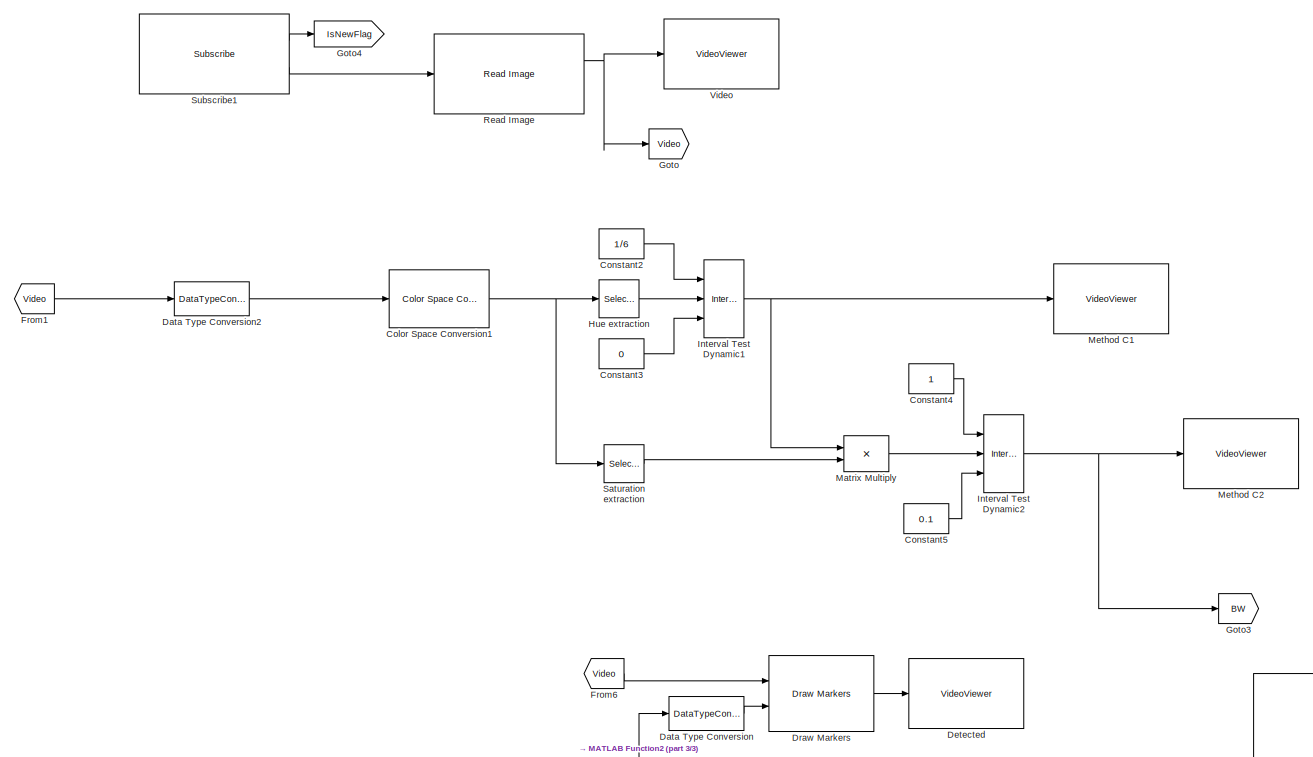
[diagram: root canvas - part 1/3, top left region]
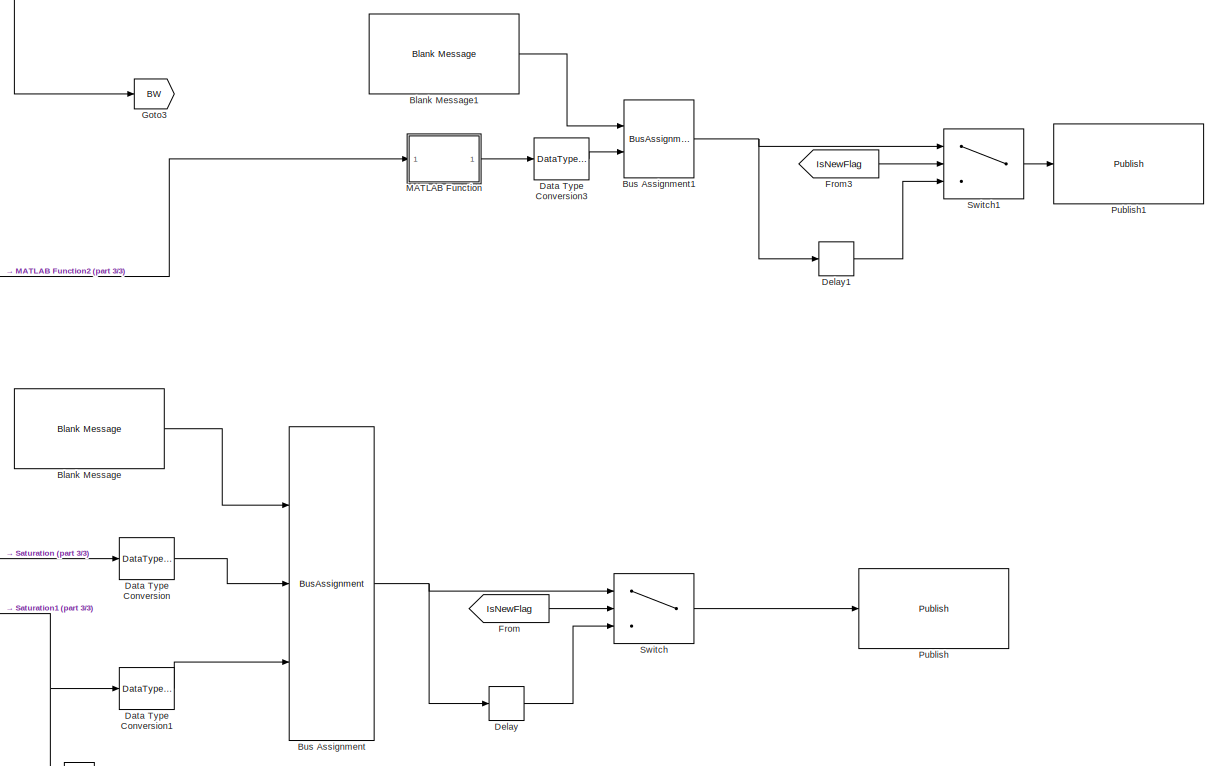
[diagram: root canvas - part 2/3, bottom right region]
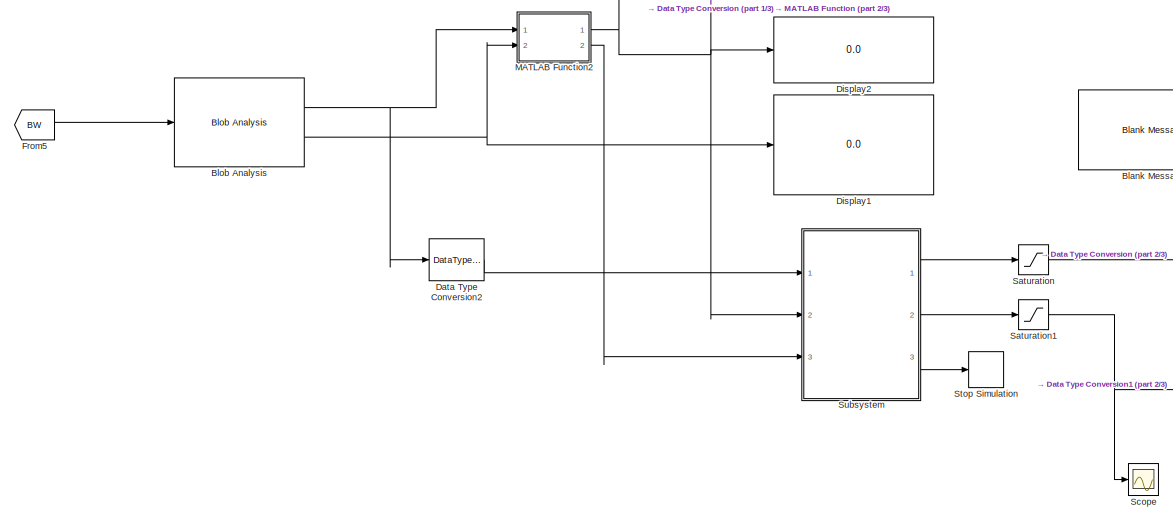
[diagram: root canvas - part 3/3, bottom left region]
MODEL slx_dbeae6b0be9f
KIND model
CONFIG AbsTol = auto
CONFIG EnableMultiTasking = off
CONFIG FixedStep = 0.1
CONFIG MaxStep = auto
CONFIG MinStep = auto
CONFIG RelTol = 1e-3
CONFIG SampleTimeConstraint = Unconstrained
CONFIG SolverName = FixedStepAuto
CONFIG StartTime = 0.0
CONFIG StopTime = inf
WORKSPACE source: mxarray member
WORKSPACE SL_ROS_VariableLengthArrays_MaxSizes: object (value not decoded)
BLOCK [Reference] Blank Message  REF=robotlib/Blank Message
  Ports = [0, 1]
  SourceBlock = robotlib/Blank Message
  SourceType = ROS Blank Message
BLOCK [Reference] Blank Message1  REF=robotlib/Blank Message
  Ports = [0, 1]
  SourceBlock = robotlib/Blank Message
  SourceType = ROS Blank Message
BLOCK [Reference] Blob Analysis  REF=visionstatistics/Blob Analysis
  Ports = [1, 2]
  SourceBlock = visionstatistics/Blob Analysis
  SourceType = Blob Analysis
  Tag = vipblks_row_conv
BLOCK [BusAssignment] Bus Assignment
  AssignedSignals = Linear.X,Angular.Z
  Ports = [3, 1]
BLOCK [BusAssignment] Bus Assignment1
  AssignedSignals = Covariance
  Ports = [2, 1]
BLOCK [Reference] Color Space Conversion1  REF=visionconversions/Color Space
 Conversion
  Ports = [1, 1]
  SourceBlock = visionconversions/Color Space\n Conversion
  SourceType = Color Space Conversion
BLOCK [Constant] Constant2
  Value = 1/6
BLOCK [Constant] Constant3
  Value = 0
BLOCK [Constant] Constant4
BLOCK [Constant] Constant5
  Value = 0.1
BLOCK [DataTypeConversion] Data Type Conversion
  RndMeth = Floor
  SaturateOnIntegerOverflow = off
BLOCK [DataTypeConversion] Data Type Conversion1
  RndMeth = Floor
  SaturateOnIntegerOverflow = off
BLOCK [DataTypeConversion] Data Type Conversion2
  RndMeth = Floor
  SaturateOnIntegerOverflow = off
BLOCK [DataTypeConversion] Data Type Conversion3
  RndMeth = Floor
  SaturateOnIntegerOverflow = off
BLOCK [Delay] Delay
  DelayLength = 1
  InputPortMap = u0
  Ports = [1, 1]
BLOCK [Delay] Delay1
  DelayLength = 1
  InputPortMap = u0
  Ports = [1, 1]
BLOCK [VideoViewer] Detected
  FigPos = [98 798 583 363]
  Ports = [1]
  ScopeSpecificationString = vipscopes.VideoViewerScopeCfg('CurrentConfiguration', extmgr.ConfigurationSet(extmgr.Configuration('Core','General UI',true),extmgr.Configuration('Core','Source UI',true),extmgr.Configuration('Sources','WiredSimulink',true),extmgr.Configuration('Visuals','Video',true),extmgr.Configuration('Tools','Image Navigation Tools',true,'Magnification',0.760416666666667,'FitToView',true),extmgr.Configuration...<+125ch>
  colormapValue = gray(256)
BLOCK [Display] Display1
  Decimation = 1
  Ports = [1]
BLOCK [Display] Display2
  Decimation = 1
  Ports = [1]
BLOCK [Reference] Draw Markers  REF=visiontextngfix/Draw Markers
  Ports = [2, 1]
  SourceBlock = visiontextngfix/Draw Markers
  SourceType = Draw Markers
BLOCK [From] From
  GotoTag = IsNewFlag
BLOCK [From] From1
  GotoTag = Video
BLOCK [From] From3
  GotoTag = IsNewFlag
BLOCK [From] From5
  GotoTag = BW
BLOCK [From] From6
  GotoTag = Video
BLOCK [Goto] Goto
  GotoTag = Video
BLOCK [Goto] Goto3
  GotoTag = BW
BLOCK [Goto] Goto4
  GotoTag = IsNewFlag
BLOCK [Selector] Hue extraction
  IndexOptions = Index vector (dialog),Index vector (dialog),Index vector (dialog)
  Indices = [1:480],[1:640],1
  InputPortWidth = 3
  NumberOfDimensions = 3
  OutputSizes = 1,1,1
  Ports = [1, 1]
BLOCK [Reference] Interval Test Dynamic1  REF=simulink/Logic and Bit
Operations/Interval Test
Dynamic
  Ports = [3, 1]
  SourceBlock = simulink/Logic and Bit\nOperations/Interval Test\nDynamic
  SourceType = Interval Test Dynamic
BLOCK [Reference] Interval Test Dynamic2  REF=simulink/Logic and Bit
Operations/Interval Test
Dynamic
  Ports = [3, 1]
  SourceBlock = simulink/Logic and Bit\nOperations/Interval Test\nDynamic
  SourceType = Interval Test Dynamic
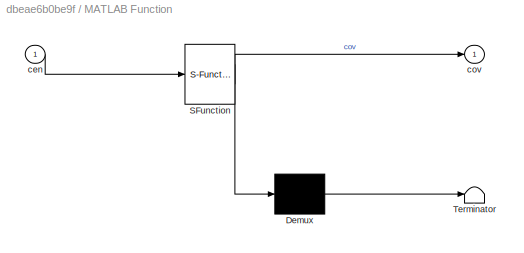
BLOCK [SubSystem] MATLAB Function
  ErrorFcn = Stateflow.Translate.translate
  PermitHierarchicalResolution = ExplicitOnly
  Ports = [1, 1]
  SFBlockType = MATLAB Function
  TreatAsAtomicUnit = on
BLOCK [Demux] MATLAB Function/ Demux 
  Outputs = 1
  Ports = [1, 1]
BLOCK [S-Function] MATLAB Function/ SFunction 
  EnableBusSupport = off
  FunctionName = sf_sfun
  PortCounts = [1 2]
  Ports = [1, 2]
  SFcnIsStateOwnerBlock = off
  SFunctionDeploymentMode = off
  Tag = Stateflow S-Function 5
BLOCK [Terminator] MATLAB Function/ Terminator 
BLOCK [Inport] MATLAB Function/cen
BLOCK [Outport] MATLAB Function/cov
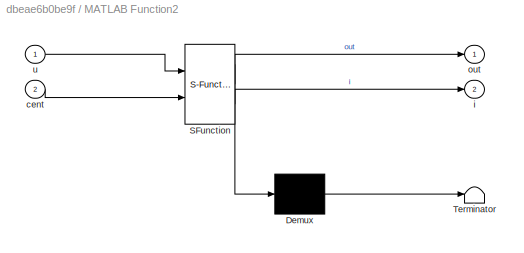
BLOCK [SubSystem] MATLAB Function2
  ErrorFcn = Stateflow.Translate.translate
  PermitHierarchicalResolution = ExplicitOnly
  Ports = [2, 2]
  SFBlockType = MATLAB Function
  TreatAsAtomicUnit = on
BLOCK [Demux] MATLAB Function2/ Demux 
  Outputs = 1
  Ports = [1, 1]
BLOCK [S-Function] MATLAB Function2/ SFunction 
  EnableBusSupport = off
  FunctionName = sf_sfun
  PortCounts = [2 3]
  Ports = [2, 3]
  SFcnIsStateOwnerBlock = off
  SFunctionDeploymentMode = off
  Tag = Stateflow S-Function 3
BLOCK [Terminator] MATLAB Function2/ Terminator 
BLOCK [Inport] MATLAB Function2/cent
  Port = 2
BLOCK [Outport] MATLAB Function2/i
  Port = 2
BLOCK [Outport] MATLAB Function2/out
BLOCK [Inport] MATLAB Function2/u
BLOCK [Product] Matrix Multiply
  Ports = [2, 1]
BLOCK [VideoViewer] Method C1
  FigPos = [314 762 591 337]
  Ports = [1]
  ScopeSpecificationString = vipscopes.VideoViewerScopeCfg('CurrentConfiguration', extmgr.ConfigurationSet(extmgr.Configuration('Core','General UI',true),extmgr.Configuration('Core','Source UI',true),extmgr.Configuration('Sources','WiredSimulink',true),extmgr.Configuration('Visuals','Video',true),extmgr.Configuration('Tools','Image Navigation Tools',true,'Magnification',0.788422546634225),extmgr.Configuration('Tools','Image T...<+109ch>
  colormapValue = gray(256)
BLOCK [VideoViewer] Method C2
  FigPos = [870 589 571 351]
  Ports = [1]
  ScopeSpecificationString = vipscopes.VideoViewerScopeCfg('CurrentConfiguration', extmgr.ConfigurationSet(extmgr.Configuration('Core','General UI',true),extmgr.Configuration('Core','Source UI',true),extmgr.Configuration('Sources','WiredSimulink',true),extmgr.Configuration('Visuals','Video',true),extmgr.Configuration('Tools','Image Navigation Tools',true,'Magnification',0.788422546634225,'FitToView',true),extmgr.Configuration...<+126ch>
  colormapValue = gray(256)
BLOCK [Reference] Publish  REF=robotlib/Publish
  Ports = [1]
  SourceBlock = robotlib/Publish
  SourceType = ROS Publish
BLOCK [Reference] Publish1  REF=robotlib/Publish
  Ports = [1]
  SourceBlock = robotlib/Publish
  SourceType = ROS Publish
BLOCK [Reference] Read Image  REF=robotlib/Read Image
  Ports = [1, 2]
  SourceBlock = robotlib/Read Image
  SourceType = ros.slros.internal.block.ReadImage
BLOCK [Saturate] Saturation
  LowerLimit = -0.2
  UpperLimit = 0.2
BLOCK [Selector] Saturation extraction
  IndexOptions = Index vector (dialog),Index vector (dialog),Index vector (dialog)
  Indices = [1:480],[1:640],2
  InputPortWidth = 3
  NumberOfDimensions = 3
  OutputSizes = 1,1,1
  Ports = [1, 1]
BLOCK [Saturate] Saturation1
  LowerLimit = -0.4
  UpperLimit = 0.4
BLOCK [Scope] Scope
  Floating = off
  NumInputPorts = 1
  Ports = [1]
  ScopeSpecificationString = Simulink.scopes.TimeScopeBlockCfg('CurrentConfiguration', extmgr.ConfigurationSet(extmgr.Configuration('Core','General UI',true),extmgr.Configuration('Core','Source UI',true),extmgr.Configuration('Sources','WiredSimulink',true),extmgr.Configuration('Visuals','Time Domain',true,'SerializedDisplays',{struct('MinYLimReal','-0.04905','MaxYLimReal','0.44989','YLabelReal','','MinYLimMag','0.00000','MaxY...<+1360ch>
BLOCK [Stop] Stop Simulation
BLOCK [Reference] Subscribe1  REF=robotlib/Subscribe
  Ports = [0, 2]
  SourceBlock = robotlib/Subscribe
  SourceType = ROS Subscribe
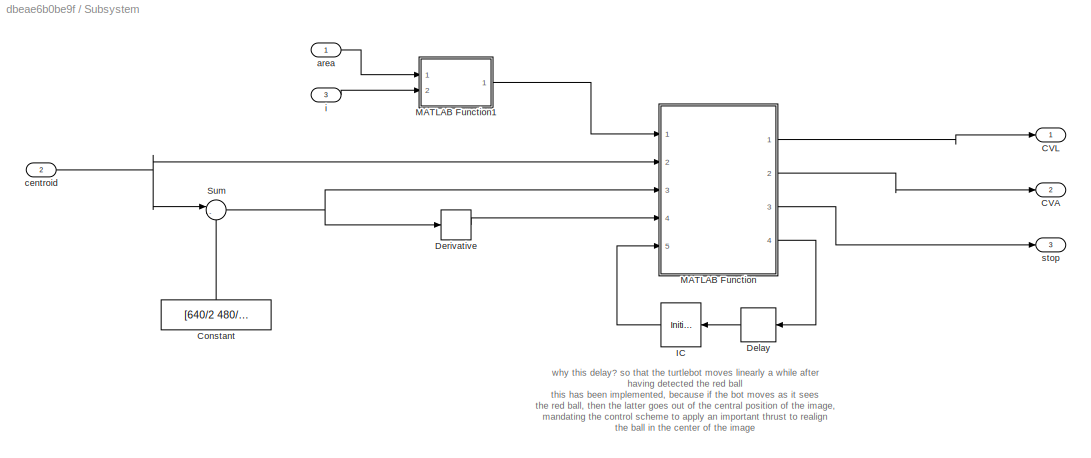
BLOCK [SubSystem] Subsystem
  Ports = [3, 3]
BLOCK [Outport] Subsystem/CVA
  Port = 2
BLOCK [Outport] Subsystem/CVL
BLOCK [Constant] Subsystem/Constant
  NameLocation = right
  Value = [640/2 480/2]
  VectorParams1D = off
BLOCK [Delay] Subsystem/Delay
  DelayLength = 10
  InputPortMap = u0
  NameLocation = top
  Ports = [1, 1]
BLOCK [Derivative] Subsystem/Derivative
BLOCK [InitialCondition] Subsystem/IC
  NameLocation = top
  Value = 0
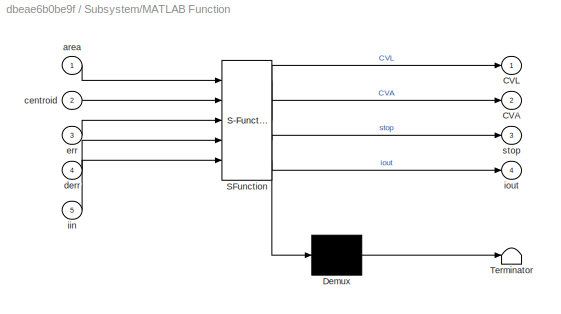
BLOCK [SubSystem] Subsystem/MATLAB Function
  ErrorFcn = Stateflow.Translate.translate
  PermitHierarchicalResolution = ExplicitOnly
  Ports = [5, 4]
  SFBlockType = MATLAB Function
  TreatAsAtomicUnit = on
BLOCK [Demux] Subsystem/MATLAB Function/ Demux 
  Outputs = 1
  Ports = [1, 1]
BLOCK [S-Function] Subsystem/MATLAB Function/ SFunction 
  EnableBusSupport = off
  FunctionName = sf_sfun
  PortCounts = [5 5]
  Ports = [5, 5]
  SFcnIsStateOwnerBlock = off
  SFunctionDeploymentMode = off
  Tag = Stateflow S-Function 2
BLOCK [Terminator] Subsystem/MATLAB Function/ Terminator 
BLOCK [Outport] Subsystem/MATLAB Function/CVA
  Port = 2
BLOCK [Outport] Subsystem/MATLAB Function/CVL
BLOCK [Inport] Subsystem/MATLAB Function/area
BLOCK [Inport] Subsystem/MATLAB Function/centroid
  Port = 2
BLOCK [Inport] Subsystem/MATLAB Function/derr
  Port = 4
BLOCK [Inport] Subsystem/MATLAB Function/err
  Port = 3
BLOCK [Inport] Subsystem/MATLAB Function/iin
  Port = 5
BLOCK [Outport] Subsystem/MATLAB Function/iout
  Port = 4
BLOCK [Outport] Subsystem/MATLAB Function/stop
  Port = 3
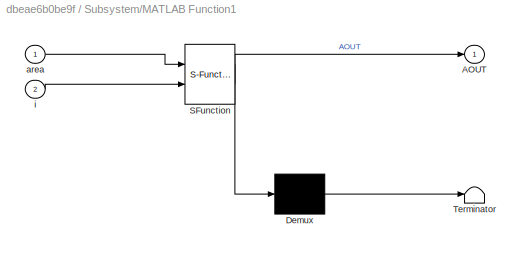
BLOCK [SubSystem] Subsystem/MATLAB Function1
  ErrorFcn = Stateflow.Translate.translate
  PermitHierarchicalResolution = ExplicitOnly
  Ports = [2, 1]
  SFBlockType = MATLAB Function
  TreatAsAtomicUnit = on
BLOCK [Demux] Subsystem/MATLAB Function1/ Demux 
  Outputs = 1
  Ports = [1, 1]
BLOCK [S-Function] Subsystem/MATLAB Function1/ SFunction 
  EnableBusSupport = off
  FunctionName = sf_sfun
  PortCounts = [2 2]
  Ports = [2, 2]
  SFcnIsStateOwnerBlock = off
  SFunctionDeploymentMode = off
  Tag = Stateflow S-Function 4
BLOCK [Terminator] Subsystem/MATLAB Function1/ Terminator 
BLOCK [Outport] Subsystem/MATLAB Function1/AOUT
BLOCK [Inport] Subsystem/MATLAB Function1/area
BLOCK [Inport] Subsystem/MATLAB Function1/i
  Port = 2
BLOCK [Sum] Subsystem/Sum
  Inputs = |-+
  Ports = [2, 1]
BLOCK [Inport] Subsystem/area
BLOCK [Inport] Subsystem/centroid
  Port = 2
BLOCK [Inport] Subsystem/i
  Port = 3
BLOCK [Outport] Subsystem/stop
  Port = 3
BLOCK [Switch] Switch
  Criteria = u2 ~= 0
  InputSameDT = off
  SaturateOnIntegerOverflow = off
BLOCK [Switch] Switch1
  Criteria = u2 ~= 0
  InputSameDT = off
  SaturateOnIntegerOverflow = off
BLOCK [VideoViewer] Video
  FigPos = [660 793 576 345]
  Ports = [1]
  ScopeSpecificationString = vipscopes.VideoViewerScopeCfg('CurrentConfiguration', extmgr.ConfigurationSet(extmgr.Configuration('Core','General UI',true),extmgr.Configuration('Core','Source UI',true),extmgr.Configuration('Sources','WiredSimulink',true),extmgr.Configuration('Sources','SimulinkEvent',false),extmgr.Configuration('Sources','Simulink',false),extmgr.Configuration('Sources','File',false),extmgr.Configuration('Source...<+1663ch>
  colormapValue = gray(256)
ANNOTATION Subsystem: why this delay? so that the turtlebot moves linearly a while after having detected the red ball this has been implemented, because if the bot moves as it sees the red ball, then the latter goes out of the central position of the image, mandating the control scheme to apply an important thrust to realign the ball in the center of the image by decreasing the angular velocity gains and increasing the...<+145ch>
LINE Blank Message1:1 -> Bus Assignment1:1
LINE Blank Message:1 -> Bus Assignment:1
NET Blob Analysis:1 -> Data Type Conversion2:1, MATLAB Function2:1
NET Blob Analysis:2 -> Display1:1, MATLAB Function2:2
NET Bus Assignment1:1 -> Delay1:1, Switch1:1
NET Bus Assignment:1 -> Delay:1, Switch:1
NET Color Space Conversion1:1 -> Hue extraction:1, Saturation extraction:1
LINE Constant2:1 -> Interval Test Dynamic1:1
LINE Constant3:1 -> Interval Test Dynamic1:3
LINE Constant4:1 -> Interval Test Dynamic2:1
LINE Constant5:1 -> Interval Test Dynamic2:3
LINE Data Type Conversion1:1 -> Bus Assignment:3
NET Data Type Conversion2:1 -> Color Space Conversion1:1, Subsystem:1
LINE Data Type Conversion3:1 -> Bus Assignment1:2
NET Data Type Conversion:1 -> Bus Assignment:2, Draw Markers:2
LINE Delay1:1 -> Switch1:3
LINE Delay:1 -> Switch:3
LINE Draw Markers:1 -> Detected:1
LINE From1:1 -> Data Type Conversion2:1
LINE From3:1 -> Switch1:2
LINE From5:1 -> Blob Analysis:1
LINE From6:1 -> Draw Markers:1
LINE From:1 -> Switch:2
LINE Hue extraction:1 -> Interval Test Dynamic1:2
NET Interval Test Dynamic1:1 -> Matrix Multiply:1, Method C1:1
NET Interval Test Dynamic2:1 -> Goto3:1, Method C2:1
NET MATLAB Function2:1 -> Data Type Conversion:1, Display2:1, MATLAB Function:1, Subsystem:2
LINE MATLAB Function2:2 -> Subsystem:3
LINE MATLAB Function:1 -> Data Type Conversion3:1
LINE Matrix Multiply:1 -> Interval Test Dynamic2:2
NET Read Image:1 -> Goto:1, Video:1
LINE Saturation extraction:1 -> Matrix Multiply:2
NET Saturation1:1 -> Data Type Conversion1:1, Scope:1
LINE Saturation:1 -> Data Type Conversion:1
LINE Subscribe1:1 -> Goto4:1
LINE Subscribe1:2 -> Read Image:1
LINE Subsystem/Constant:1 -> Subsystem/Sum:2
LINE Subsystem/Delay:1 -> Subsystem/IC:1
LINE Subsystem/Derivative:1 -> Subsystem/MATLAB Function:4
LINE Subsystem/IC:1 -> Subsystem/MATLAB Function:5
LINE Subsystem/MATLAB Function1:1 -> Subsystem/MATLAB Function:1
LINE Subsystem/MATLAB Function:1 -> Subsystem/CVL:1
LINE Subsystem/MATLAB Function:2 -> Subsystem/CVA:1
LINE Subsystem/MATLAB Function:3 -> Subsystem/stop:1
LINE Subsystem/MATLAB Function:4 -> Subsystem/Delay:1
NET Subsystem/Sum:1 -> Subsystem/Derivative:1, Subsystem/MATLAB Function:3
LINE Subsystem/area:1 -> Subsystem/MATLAB Function1:1
NET Subsystem/centroid:1 -> Subsystem/MATLAB Function:2, Subsystem/Sum:1
LINE Subsystem/i:1 -> Subsystem/MATLAB Function1:2
LINE Subsystem:1 -> Saturation:1
LINE Subsystem:2 -> Saturation1:1
LINE Subsystem:3 -> Stop Simulation:1
LINE Switch1:1 -> Publish1:1
LINE Switch:1 -> Publish:1
note: NET lines group one-source signal fan-out (src -> all destinations, sorted); 1:1 wires keep LINE
CHART Subsystem/MATLAB Function states=1 transitions=1
  STATE_LABEL 'eML_blk_kernel()'
  STATE_LABEL 'SCRIPT:\nfunction [CVL, CVA, stop, iout] = fcn(area, centroid, err, derr, iin)\n\nNC = 2; % max number of centroids\nNoCV = - ones(NC, 2);\n\nif centroid == NoCV\n    CVL = 0;\n    CVA = 0.2;\n    iout = 0;\nelse\n    iout = 1;\n    kPL = 0.05;\n    kPA = 0.003;\n    kDA = 0.01*0;\n    kIA = 0;\n    \n    ERR = err(1);\n    dERR = derr(1);\n\n    if iin == 1\n        CVL = kPL*area;\n    else\n        CVL = 0;\n    end\n\n...<+148ch>'
CHART MATLAB Function2 states=1 transitions=1
  STATE_LABEL 'eML_blk_kernel()'
  STATE_LABEL 'SCRIPT:\nfunction [out, i]  = fcn(u,cent)\n\n[~,i] = max(u);\n\nif ~isempty(i)\n    out = cent(i,:);\nelse \n    out = [0,0];\nend'
CHART Subsystem/MATLAB Function1 states=1 transitions=1
  STATE_LABEL 'eML_blk_kernel()'
  STATE_LABEL 'SCRIPT:\nfunction AOUT = fcn(area, i)\n\nAOUT = area(i, 1);\n'
CHART MATLAB Function states=1 transitions=1
  STATE_LABEL 'eML_blk_kernel()'
  STATE_LABEL 'SCRIPT:\nfunction cov = fcn(cen)\n\ncov = [cen zeros(1, 34)];\n'
CHART  states=0 transitions=0
CHART  states=0 transitions=0
CHART  states=0 transitions=0
CHART  states=0 transitions=0
